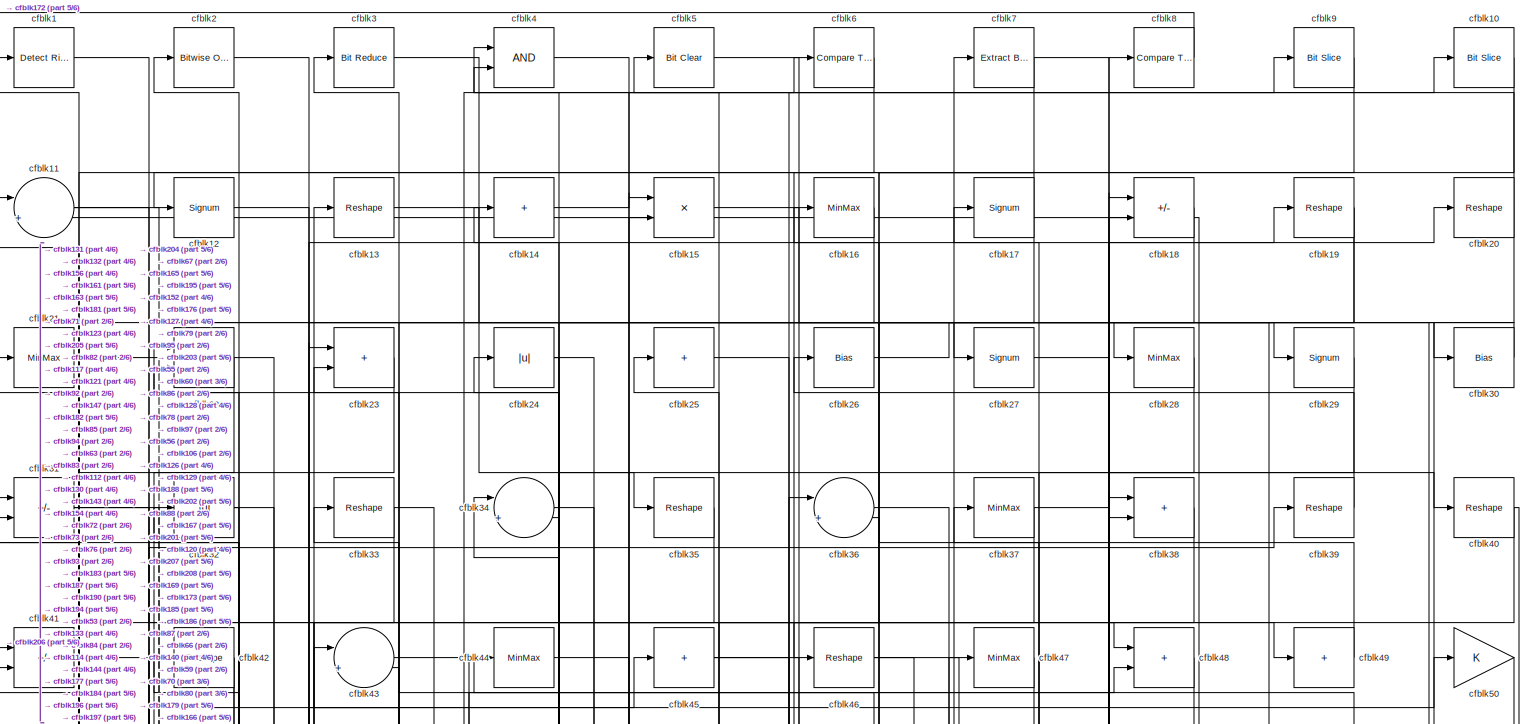
[diagram: root canvas - part 1/6, full width, top band]
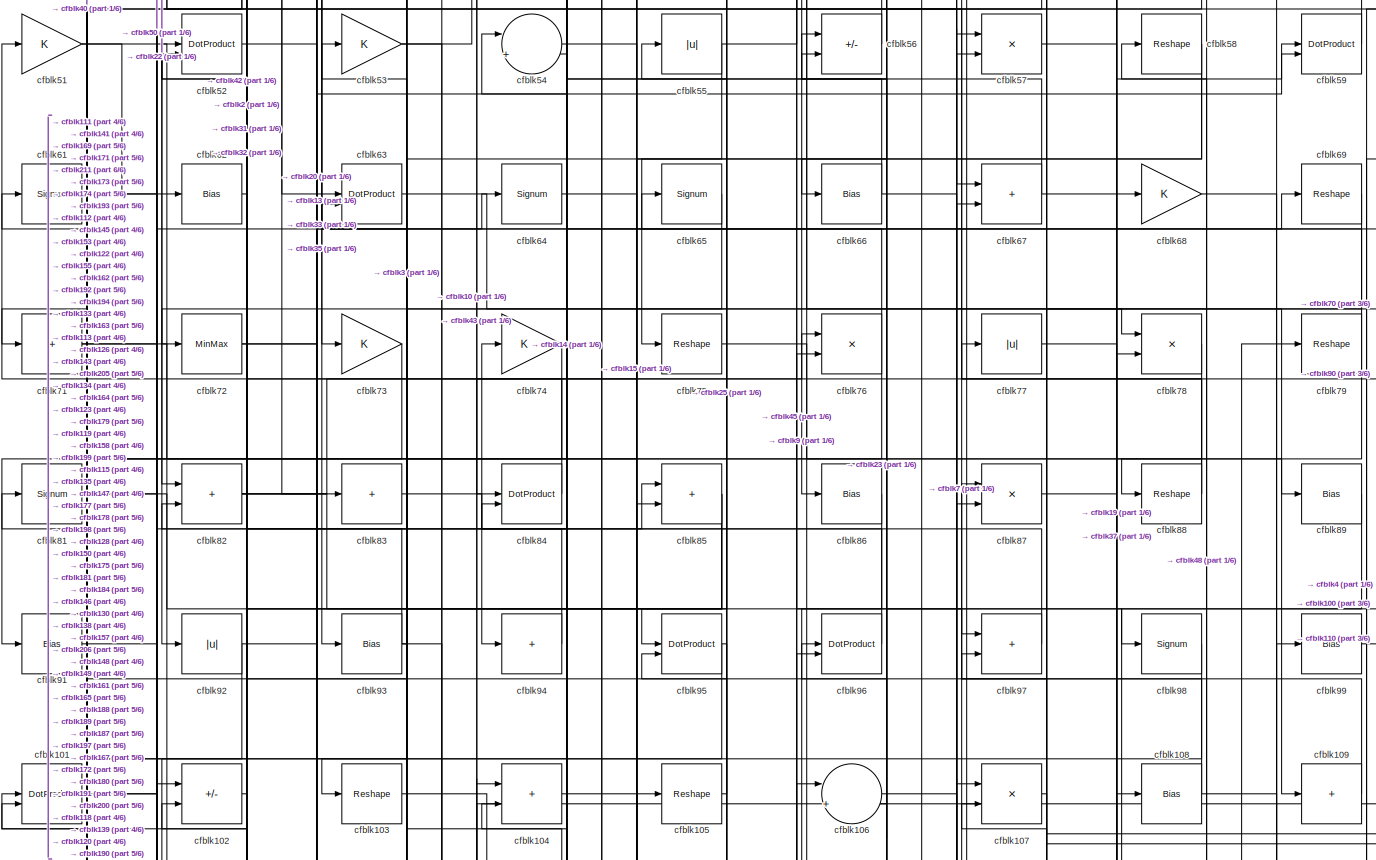
[diagram: root canvas - part 2/6, full width, middle band]
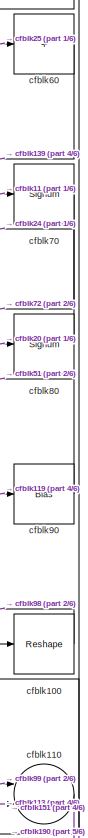
[diagram: root canvas - part 3/6, middle right region]
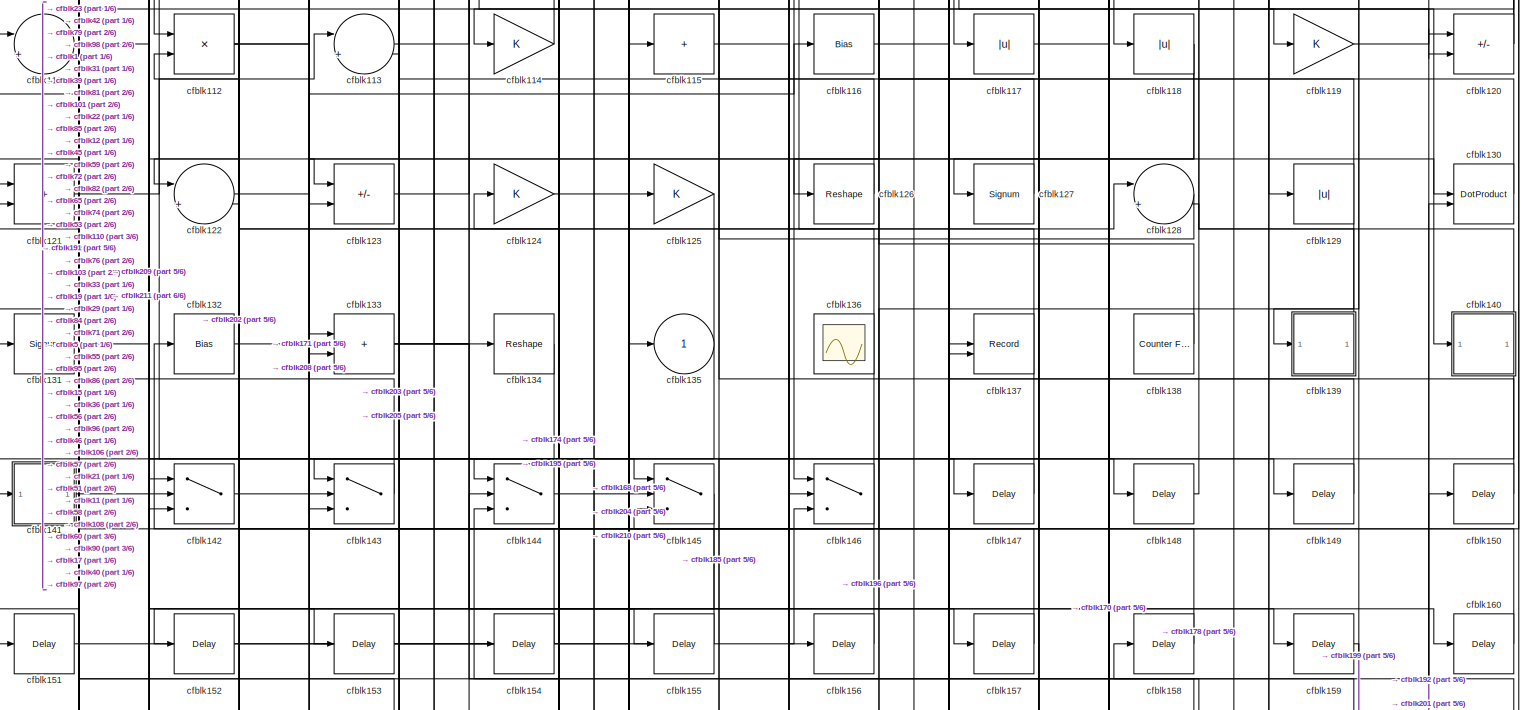
[diagram: root canvas - part 4/6, full width, middle band]
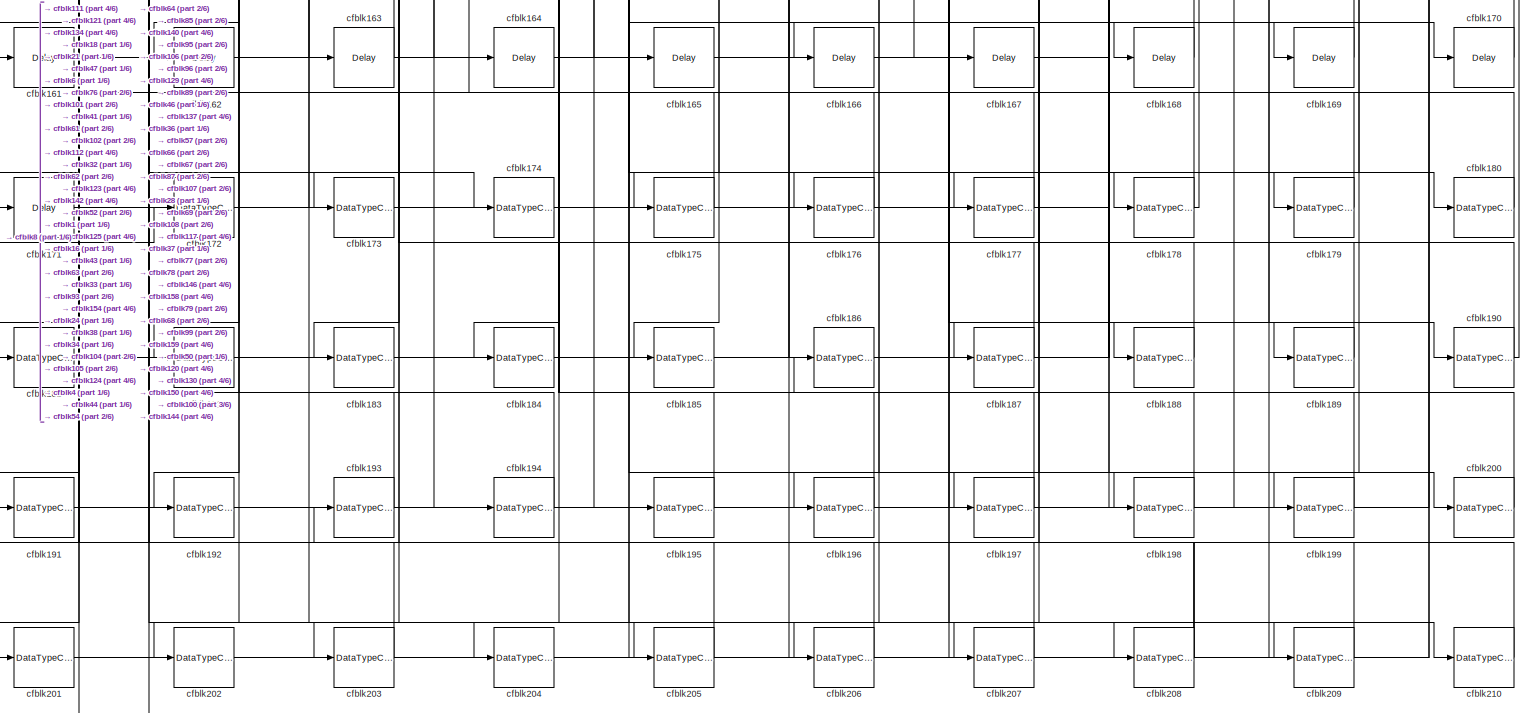
[diagram: root canvas - part 5/6, full width, bottom band]
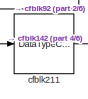
[diagram: root canvas - part 6/6, bottom left region]
MODEL slx_17cd2291e1c9
KIND model
CONFIG AbsTol = auto
CONFIG EnableMultiTasking = off
CONFIG FixedStep = auto
CONFIG MaxStep = auto
CONFIG MinStep = auto
CONFIG RelTol = 1e-3
CONFIG SampleTimeConstraint = Unconstrained
CONFIG SolverName = VariableStepAuto
CONFIG StartTime = 0.0
CONFIG StopTime = 10.0
BLOCK [Reference] cfblk1  REF=hdlsllib/Logic and Bit
Operations/Detect Rise
Nonnegative
  SourceBlock = hdlsllib/Logic and Bit\nOperations/Detect Rise\nNonnegative
  SourceType = Detect Rise Nonnegative
BLOCK [Reference] cfblk10  REF=hdlsllib/Logic and Bit
Operations/Bit Slice
  SourceBlock = hdlsllib/Logic and Bit\nOperations/Bit Slice
  SourceType = Bit Slice
BLOCK [Reshape] cfblk100
BLOCK [DotProduct] cfblk101
  OutDataTypeStr = Inherit: Inherit via internal rule
BLOCK [Sum] cfblk102
  IconShape = rectangular
  Inputs = +-
BLOCK [Reshape] cfblk103
BLOCK [Sum] cfblk104
  IconShape = rectangular
BLOCK [Reshape] cfblk105
BLOCK [Sum] cfblk106
  Inputs = |++
BLOCK [Product] cfblk107
  Inputs = */
  RndMeth = Zero
  SaturateOnIntegerOverflow = on
BLOCK [Bias] cfblk108
  Bias = 0.0
  SaturateOnIntegerOverflow = off
BLOCK [Sum] cfblk109
  IconShape = rectangular
  Inputs = +
BLOCK [Sum] cfblk11
  Inputs = |++
BLOCK [Sum] cfblk110
  Inputs = |++
BLOCK [Sum] cfblk111
  Inputs = |++
BLOCK [Product] cfblk112
  Inputs = */
  RndMeth = Zero
  SaturateOnIntegerOverflow = on
BLOCK [Sum] cfblk113
  Inputs = |++
BLOCK [Gain] cfblk114
BLOCK [Sum] cfblk115
  IconShape = rectangular
  Inputs = +
BLOCK [Bias] cfblk116
  Bias = 0.0
  SaturateOnIntegerOverflow = off
BLOCK [Abs] cfblk117
  SaturateOnIntegerOverflow = off
BLOCK [Abs] cfblk118
  SaturateOnIntegerOverflow = off
BLOCK [Gain] cfblk119
BLOCK [Signum] cfblk12
BLOCK [Sum] cfblk120
  IconShape = rectangular
  Inputs = +-
BLOCK [Sum] cfblk121
  IconShape = rectangular
BLOCK [Sum] cfblk122
  Inputs = |++
BLOCK [Sum] cfblk123
  IconShape = rectangular
  Inputs = +-
BLOCK [Gain] cfblk124
BLOCK [Gain] cfblk125
BLOCK [Reshape] cfblk126
BLOCK [Signum] cfblk127
BLOCK [Sum] cfblk128
  Inputs = |++
BLOCK [Abs] cfblk129
  SaturateOnIntegerOverflow = off
BLOCK [Reshape] cfblk13
BLOCK [DotProduct] cfblk130
  OutDataTypeStr = Inherit: Inherit via internal rule
BLOCK [Signum] cfblk131
BLOCK [Bias] cfblk132
  Bias = 0.0
  SaturateOnIntegerOverflow = off
BLOCK [Sum] cfblk133
  IconShape = rectangular
BLOCK [Reshape] cfblk134
BLOCK [Outport] cfblk135
  VectorParamsAs1DForOutWhenUnconnected = off
BLOCK [Scope] cfblk136
  Floating = on
  NumInputPorts = 1
  ScopeSpecificationString = Simulink.scopes.TimeScopeBlockCfg('CurrentConfiguration', extmgr.ConfigurationSet(extmgr.Configuration('Core','General UI',true,'FigureColor',[0.156862745098039 0.156862745098039 0.156862745098039]),extmgr.Configuration('Core','Source UI',true),extmgr.Configuration('Sources','WiredSimulink',true,'DataLoggingVariableName','ScopeData1','DataLoggingSaveFormat','StructureWithTime','DataLoggingLimitDat...<+2713ch>
BLOCK [Record] cfblk137
  CompatibilityTag = XY
  FileSettingsInternal = {"entries":[{"content":{"excelSettings":{"content":{},"type":"Streamout.ExcelSettings"}},"type":"Streamout.FileSettingStorage","uuid":""}],"packageUris":["http:\/\/schema.mathworks.com\/mf0\/streamout_blocks\/R2020a"],"version":"1.0"}
  Layout = [1 1]
  SignalsInternal = {"entries":[{"content":{"signals":[{"content":{"blockPath":[],"dimensions":[1],"domain":"","lineColor":"#a2142f","plots":[1],"port":1,"signalID":4553,"signalName":"XY Graph:1"},"type":"RecordBlkView.Signal","uuid":""},{"content":{"blockPath":[],"dimensions":[1],"domain":"","lineColor":"#139fff","plots":[1],"port":2,"signalID":4556,"signalName":"XY Graph:2"},"type":"RecordBlkView.Signal","uuid":""}...<+146ch>
  VisualizationBindings = {"xyplotplugin":{"info":[{"series":[{"bindingParametersList":[{"parameter":"X-Axis","signalID":4553,"signalName":"XY Graph:1"},{"parameter":"Y-Axis","signalID":4556,"signalName":"XY Graph:2"}],"seriesID":53753}],"subplotID":1}]}}
  st = -1
BLOCK [Reference] cfblk138  REF=hdlsllib/Sources/Counter
Free-Running
  SourceBlock = hdlsllib/Sources/Counter\nFree-Running
  SourceType = Counter Free-Running
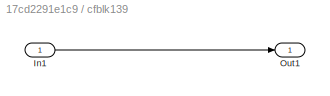
BLOCK [SubSystem] cfblk139
  LibrarySourceBlock = hdlsllib/Ports &\nSubsystems/Subsystem
BLOCK [Inport] cfblk139/In1
BLOCK [Outport] cfblk139/Out1
BLOCK [Sum] cfblk14
  IconShape = rectangular
  Inputs = +
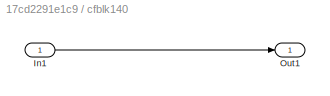
BLOCK [SubSystem] cfblk140
  LibrarySourceBlock = hdlsllib/Ports &\nSubsystems/Subsystem
BLOCK [Inport] cfblk140/In1
BLOCK [Outport] cfblk140/Out1
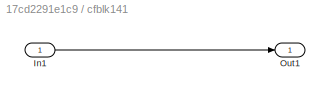
BLOCK [SubSystem] cfblk141
  LibrarySourceBlock = hdlsllib/Ports &\nSubsystems/Subsystem
BLOCK [Inport] cfblk141/In1
BLOCK [Outport] cfblk141/Out1
BLOCK [Switch] cfblk142
  InputSameDT = off
  SaturateOnIntegerOverflow = off
BLOCK [Switch] cfblk143
  InputSameDT = off
  SaturateOnIntegerOverflow = off
BLOCK [Switch] cfblk144
  InputSameDT = off
  SaturateOnIntegerOverflow = off
BLOCK [Switch] cfblk145
  InputSameDT = off
  SaturateOnIntegerOverflow = off
BLOCK [Switch] cfblk146
  InputSameDT = off
  SaturateOnIntegerOverflow = off
BLOCK [Delay] cfblk147
  InputPortMap = u0
  SampleTime = 1
BLOCK [Delay] cfblk148
  InputPortMap = u0
  SampleTime = 1
BLOCK [Delay] cfblk149
  InputPortMap = u0
  SampleTime = 1
BLOCK [Product] cfblk15
  Inputs = */
  RndMeth = Zero
  SaturateOnIntegerOverflow = on
BLOCK [Delay] cfblk150
  InputPortMap = u0
  SampleTime = 1
BLOCK [Delay] cfblk151
  InputPortMap = u0
  SampleTime = 1
BLOCK [Delay] cfblk152
  InputPortMap = u0
  SampleTime = 1
BLOCK [Delay] cfblk153
  InputPortMap = u0
  SampleTime = 1
BLOCK [Delay] cfblk154
  InputPortMap = u0
  SampleTime = 1
BLOCK [Delay] cfblk155
  InputPortMap = u0
  SampleTime = 1
BLOCK [Delay] cfblk156
  InputPortMap = u0
  SampleTime = 1
BLOCK [Delay] cfblk157
  InputPortMap = u0
  SampleTime = 1
BLOCK [Delay] cfblk158
  InputPortMap = u0
  SampleTime = 1
BLOCK [Delay] cfblk159
  InputPortMap = u0
  SampleTime = 1
BLOCK [MinMax] cfblk16
BLOCK [Delay] cfblk160
  InputPortMap = u0
  SampleTime = 1
BLOCK [Delay] cfblk161
  InputPortMap = u0
  SampleTime = 1
BLOCK [Delay] cfblk162
  InputPortMap = u0
  SampleTime = 1
BLOCK [Delay] cfblk163
  InputPortMap = u0
  SampleTime = 1
BLOCK [Delay] cfblk164
  InputPortMap = u0
  SampleTime = 1
BLOCK [Delay] cfblk165
  InputPortMap = u0
  SampleTime = 1
BLOCK [Delay] cfblk166
  InputPortMap = u0
  SampleTime = 1
BLOCK [Delay] cfblk167
  InputPortMap = u0
  SampleTime = 1
BLOCK [Delay] cfblk168
  InputPortMap = u0
  SampleTime = 1
BLOCK [Delay] cfblk169
  InputPortMap = u0
  SampleTime = 1
BLOCK [Signum] cfblk17
BLOCK [Delay] cfblk170
  InputPortMap = u0
  SampleTime = 1
BLOCK [Delay] cfblk171
  InputPortMap = u0
  SampleTime = 1
BLOCK [DataTypeConversion] cfblk172
  OutDataTypeStr = uint8
  RndMeth = Floor
  SaturateOnIntegerOverflow = off
BLOCK [DataTypeConversion] cfblk173
  OutDataTypeStr = uint8
  RndMeth = Floor
  SaturateOnIntegerOverflow = off
BLOCK [DataTypeConversion] cfblk174
  RndMeth = Floor
  SaturateOnIntegerOverflow = off
BLOCK [DataTypeConversion] cfblk175
  OutDataTypeStr = uint8
  RndMeth = Floor
  SaturateOnIntegerOverflow = off
BLOCK [DataTypeConversion] cfblk176
  OutDataTypeStr = uint8
  RndMeth = Floor
  SaturateOnIntegerOverflow = off
BLOCK [DataTypeConversion] cfblk177
  OutDataTypeStr = uint8
  RndMeth = Floor
  SaturateOnIntegerOverflow = off
BLOCK [DataTypeConversion] cfblk178
  RndMeth = Floor
  SaturateOnIntegerOverflow = off
BLOCK [DataTypeConversion] cfblk179
  OutDataTypeStr = uint8
  RndMeth = Floor
  SaturateOnIntegerOverflow = off
BLOCK [Sum] cfblk18
  IconShape = rectangular
  Inputs = +-
BLOCK [DataTypeConversion] cfblk180
  OutDataTypeStr = uint8
  RndMeth = Floor
  SaturateOnIntegerOverflow = off
BLOCK [DataTypeConversion] cfblk181
  RndMeth = Floor
  SaturateOnIntegerOverflow = off
BLOCK [DataTypeConversion] cfblk182
  OutDataTypeStr = uint8
  RndMeth = Floor
  SaturateOnIntegerOverflow = off
BLOCK [DataTypeConversion] cfblk183
  OutDataTypeStr = uint8
  RndMeth = Floor
  SaturateOnIntegerOverflow = off
BLOCK [DataTypeConversion] cfblk184
  OutDataTypeStr = uint8
  RndMeth = Floor
  SaturateOnIntegerOverflow = off
BLOCK [DataTypeConversion] cfblk185
  OutDataTypeStr = uint8
  RndMeth = Floor
  SaturateOnIntegerOverflow = off
BLOCK [DataTypeConversion] cfblk186
  OutDataTypeStr = uint8
  RndMeth = Floor
  SaturateOnIntegerOverflow = off
BLOCK [DataTypeConversion] cfblk187
  OutDataTypeStr = uint8
  RndMeth = Floor
  SaturateOnIntegerOverflow = off
BLOCK [DataTypeConversion] cfblk188
  OutDataTypeStr = uint8
  RndMeth = Floor
  SaturateOnIntegerOverflow = off
BLOCK [DataTypeConversion] cfblk189
  OutDataTypeStr = uint8
  RndMeth = Floor
  SaturateOnIntegerOverflow = off
BLOCK [Reshape] cfblk19
BLOCK [DataTypeConversion] cfblk190
  RndMeth = Floor
  SaturateOnIntegerOverflow = off
BLOCK [DataTypeConversion] cfblk191
  OutDataTypeStr = uint8
  RndMeth = Floor
  SaturateOnIntegerOverflow = off
BLOCK [DataTypeConversion] cfblk192
  OutDataTypeStr = uint8
  RndMeth = Floor
  SaturateOnIntegerOverflow = off
BLOCK [DataTypeConversion] cfblk193
  OutDataTypeStr = uint8
  RndMeth = Floor
  SaturateOnIntegerOverflow = off
BLOCK [DataTypeConversion] cfblk194
  OutDataTypeStr = uint8
  RndMeth = Floor
  SaturateOnIntegerOverflow = off
BLOCK [DataTypeConversion] cfblk195
  RndMeth = Floor
  SaturateOnIntegerOverflow = off
BLOCK [DataTypeConversion] cfblk196
  OutDataTypeStr = uint8
  RndMeth = Floor
  SaturateOnIntegerOverflow = off
BLOCK [DataTypeConversion] cfblk197
  OutDataTypeStr = uint8
  RndMeth = Floor
  SaturateOnIntegerOverflow = off
BLOCK [DataTypeConversion] cfblk198
  RndMeth = Floor
  SaturateOnIntegerOverflow = off
BLOCK [DataTypeConversion] cfblk199
  OutDataTypeStr = uint8
  RndMeth = Floor
  SaturateOnIntegerOverflow = off
BLOCK [Reference] cfblk2  REF=simulink/Logic and Bit
Operations/Bitwise
Operator
  LibrarySourceBlock = hdlsllib/Logic and Bit\nOperations/Bitwise\nOperator
  SourceBlock = simulink/Logic and Bit\nOperations/Bitwise\nOperator
  SourceType = Bitwise Operator
BLOCK [Reshape] cfblk20
BLOCK [DataTypeConversion] cfblk200
  OutDataTypeStr = uint8
  RndMeth = Floor
  SaturateOnIntegerOverflow = off
BLOCK [DataTypeConversion] cfblk201
  OutDataTypeStr = uint8
  RndMeth = Floor
  SaturateOnIntegerOverflow = off
BLOCK [DataTypeConversion] cfblk202
  OutDataTypeStr = uint8
  RndMeth = Floor
  SaturateOnIntegerOverflow = off
BLOCK [DataTypeConversion] cfblk203
  RndMeth = Floor
  SaturateOnIntegerOverflow = off
BLOCK [DataTypeConversion] cfblk204
  OutDataTypeStr = uint8
  RndMeth = Floor
  SaturateOnIntegerOverflow = off
BLOCK [DataTypeConversion] cfblk205
  RndMeth = Floor
  SaturateOnIntegerOverflow = off
BLOCK [DataTypeConversion] cfblk206
  OutDataTypeStr = uint8
  RndMeth = Floor
  SaturateOnIntegerOverflow = off
BLOCK [DataTypeConversion] cfblk207
  OutDataTypeStr = uint8
  RndMeth = Floor
  SaturateOnIntegerOverflow = off
BLOCK [DataTypeConversion] cfblk208
  RndMeth = Floor
  SaturateOnIntegerOverflow = off
BLOCK [DataTypeConversion] cfblk209
  OutDataTypeStr = uint8
  RndMeth = Floor
  SaturateOnIntegerOverflow = off
BLOCK [MinMax] cfblk21
BLOCK [DataTypeConversion] cfblk210
  OutDataTypeStr = uint8
  RndMeth = Floor
  SaturateOnIntegerOverflow = off
BLOCK [DataTypeConversion] cfblk211
  OutDataTypeStr = uint8
  RndMeth = Floor
  SaturateOnIntegerOverflow = off
BLOCK [Sum] cfblk22
  IconShape = rectangular
BLOCK [Sum] cfblk23
  IconShape = rectangular
BLOCK [Abs] cfblk24
  SaturateOnIntegerOverflow = off
BLOCK [Sum] cfblk25
  IconShape = rectangular
  Inputs = +
BLOCK [Bias] cfblk26
  Bias = 0.0
  SaturateOnIntegerOverflow = off
BLOCK [Signum] cfblk27
BLOCK [MinMax] cfblk28
BLOCK [Signum] cfblk29
BLOCK [Reference] cfblk3  REF=hdlsllib/Logic and Bit
Operations/Bit Reduce
  SourceBlock = hdlsllib/Logic and Bit\nOperations/Bit Reduce
  SourceType = Bit Reduce
BLOCK [Bias] cfblk30
  Bias = 0.0
  SaturateOnIntegerOverflow = off
BLOCK [Sum] cfblk31
  IconShape = rectangular
  Inputs = +-
BLOCK [Abs] cfblk32
  SaturateOnIntegerOverflow = off
BLOCK [Reshape] cfblk33
BLOCK [Sum] cfblk34
  Inputs = |++
BLOCK [Reshape] cfblk35
BLOCK [Sum] cfblk36
  Inputs = |++
BLOCK [MinMax] cfblk37
BLOCK [Sum] cfblk38
  IconShape = rectangular
BLOCK [Reshape] cfblk39
BLOCK [Logic] cfblk4
  AllPortsSameDT = off
  OutDataTypeStr = boolean
BLOCK [Reshape] cfblk40
BLOCK [Sum] cfblk41
  IconShape = rectangular
  Inputs = +-
BLOCK [Reshape] cfblk42
BLOCK [Sum] cfblk43
  Inputs = |++
BLOCK [MinMax] cfblk44
BLOCK [Sum] cfblk45
  IconShape = rectangular
  Inputs = +
BLOCK [Reshape] cfblk46
BLOCK [MinMax] cfblk47
BLOCK [Sum] cfblk48
  IconShape = rectangular
BLOCK [Sum] cfblk49
  IconShape = rectangular
  Inputs = +
BLOCK [Reference] cfblk5  REF=simulink/Logic and Bit
Operations/Bit Clear
  LibrarySourceBlock = hdlsllib/Logic and Bit\nOperations/Bit Clear
  SourceBlock = simulink/Logic and Bit\nOperations/Bit Clear
  SourceType = Bit Clear
BLOCK [Gain] cfblk50
BLOCK [Gain] cfblk51
BLOCK [DotProduct] cfblk52
  OutDataTypeStr = Inherit: Inherit via internal rule
BLOCK [Gain] cfblk53
BLOCK [Sum] cfblk54
  Inputs = |++
BLOCK [Abs] cfblk55
  SaturateOnIntegerOverflow = off
BLOCK [Sum] cfblk56
  IconShape = rectangular
  Inputs = +-
BLOCK [Product] cfblk57
  Inputs = */
  RndMeth = Zero
  SaturateOnIntegerOverflow = on
BLOCK [Reshape] cfblk58
BLOCK [DotProduct] cfblk59
  OutDataTypeStr = Inherit: Inherit via internal rule
BLOCK [Reference] cfblk6  REF=hdlsllib/Logic and Bit
Operations/Compare
To Zero
  SourceBlock = hdlsllib/Logic and Bit\nOperations/Compare\nTo Zero
  SourceType = Compare To Zero
BLOCK [Sum] cfblk60
  IconShape = rectangular
  Inputs = +
BLOCK [Signum] cfblk61
BLOCK [Bias] cfblk62
  Bias = 0.0
  SaturateOnIntegerOverflow = off
BLOCK [DotProduct] cfblk63
  OutDataTypeStr = Inherit: Inherit via internal rule
BLOCK [Signum] cfblk64
BLOCK [Signum] cfblk65
BLOCK [Bias] cfblk66
  Bias = 0.0
  SaturateOnIntegerOverflow = off
BLOCK [Sum] cfblk67
  IconShape = rectangular
BLOCK [Gain] cfblk68
BLOCK [Reshape] cfblk69
BLOCK [Reference] cfblk7  REF=simulink/Logic and Bit
Operations/Extract Bits
  LibrarySourceBlock = hdlsllib/Logic and Bit\nOperations/Extract Bits
  SourceBlock = simulink/Logic and Bit\nOperations/Extract Bits
  SourceType = Extract Bits
BLOCK [Signum] cfblk70
BLOCK [Sum] cfblk71
  IconShape = rectangular
  Inputs = +
BLOCK [MinMax] cfblk72
BLOCK [Gain] cfblk73
BLOCK [Gain] cfblk74
BLOCK [Reshape] cfblk75
BLOCK [Product] cfblk76
  Inputs = */
  RndMeth = Zero
  SaturateOnIntegerOverflow = on
BLOCK [Abs] cfblk77
  SaturateOnIntegerOverflow = off
BLOCK [Product] cfblk78
  Inputs = */
  RndMeth = Zero
  SaturateOnIntegerOverflow = on
BLOCK [Reshape] cfblk79
BLOCK [Reference] cfblk8  REF=hdlsllib/Logic and Bit
Operations/Compare
To Zero
  SourceBlock = hdlsllib/Logic and Bit\nOperations/Compare\nTo Zero
  SourceType = Compare To Zero
BLOCK [Signum] cfblk80
BLOCK [Signum] cfblk81
BLOCK [Sum] cfblk82
  IconShape = rectangular
BLOCK [Sum] cfblk83
  IconShape = rectangular
  Inputs = +
BLOCK [DotProduct] cfblk84
  OutDataTypeStr = Inherit: Inherit via internal rule
BLOCK [Sum] cfblk85
  IconShape = rectangular
BLOCK [Bias] cfblk86
  Bias = 0.0
  SaturateOnIntegerOverflow = off
BLOCK [Product] cfblk87
  Inputs = */
  RndMeth = Zero
  SaturateOnIntegerOverflow = on
BLOCK [Reshape] cfblk88
BLOCK [Bias] cfblk89
  Bias = 0.0
  SaturateOnIntegerOverflow = off
BLOCK [Reference] cfblk9  REF=hdlsllib/Logic and Bit
Operations/Bit Slice
  SourceBlock = hdlsllib/Logic and Bit\nOperations/Bit Slice
  SourceType = Bit Slice
BLOCK [Bias] cfblk90
  Bias = 0.0
  SaturateOnIntegerOverflow = off
BLOCK [Bias] cfblk91
  Bias = 0.0
  SaturateOnIntegerOverflow = off
BLOCK [Abs] cfblk92
  SaturateOnIntegerOverflow = off
BLOCK [Bias] cfblk93
  Bias = 0.0
  SaturateOnIntegerOverflow = off
BLOCK [Sum] cfblk94
  IconShape = rectangular
  Inputs = +
BLOCK [DotProduct] cfblk95
  OutDataTypeStr = Inherit: Inherit via internal rule
BLOCK [DotProduct] cfblk96
  OutDataTypeStr = Inherit: Inherit via internal rule
BLOCK [Sum] cfblk97
  IconShape = rectangular
BLOCK [Signum] cfblk98
BLOCK [Bias] cfblk99
  Bias = 0.0
  SaturateOnIntegerOverflow = off
LINE cfblk100:1 -> cfblk98:1
NET cfblk101:1 -> cfblk173:1, cfblk64:1
LINE cfblk102:1 -> cfblk192:1
LINE cfblk103:1 -> cfblk119:1
LINE cfblk104:1 -> cfblk178:1
LINE cfblk105:1 -> cfblk65:1
LINE cfblk106:1 -> cfblk148:1
LINE cfblk107:1 -> cfblk187:1
NET cfblk108:1 -> cfblk120:2, cfblk87:1
LINE cfblk109:1 -> cfblk81:1
LINE cfblk10:1 -> cfblk106:2
LINE cfblk110:1 -> cfblk151:1
LINE cfblk111:1 -> cfblk157:1
NET cfblk112:1 -> cfblk202:1, cfblk45:1, cfblk59:2
LINE cfblk113:1 -> cfblk110:2
LINE cfblk114:1 -> cfblk33:1
LINE cfblk115:1 -> cfblk156:1
LINE cfblk116:1 -> cfblk137:1
LINE cfblk117:1 -> cfblk170:1
NET cfblk118:1 -> cfblk127:1, cfblk133:2
LINE cfblk119:1 -> cfblk90:1
NET cfblk11:1 -> cfblk48:1, cfblk70:1
NET cfblk120:1 -> cfblk17:1, cfblk97:2
LINE cfblk121:1 -> cfblk113:1
LINE cfblk122:1 -> cfblk116:1
LINE cfblk123:1 -> cfblk76:1
LINE cfblk124:1 -> cfblk168:1
LINE cfblk125:1 -> cfblk203:1
LINE cfblk126:1 -> cfblk53:1
LINE cfblk127:1 -> cfblk5:1
LINE cfblk128:1 -> cfblk55:1
NET cfblk129:1 -> cfblk196:1, cfblk36:2
LINE cfblk12:1 -> cfblk130:1
LINE cfblk130:1 -> cfblk56:1
LINE cfblk131:1 -> cfblk39:1
LINE cfblk132:1 -> cfblk155:1
NET cfblk133:1 -> cfblk159:1, cfblk160:1, cfblk48:2
LINE cfblk134:1 -> cfblk191:1
LINE cfblk138:1 -> cfblk96:1
LINE cfblk139/In1:1 -> cfblk139/Out1:1
LINE cfblk139:1 -> cfblk58:1
LINE cfblk13:1 -> cfblk35:1
LINE cfblk140/In1:1 -> cfblk140/Out1:1
NET cfblk140:1 -> cfblk11:2, cfblk185:1
LINE cfblk141/In1:1 -> cfblk141/Out1:1
LINE cfblk141:1 -> cfblk149:1
LINE cfblk142:1 -> cfblk208:1
LINE cfblk143:1 -> cfblk11:1
LINE cfblk144:1 -> cfblk210:1
LINE cfblk145:1 -> cfblk152:1
NET cfblk146:1 -> cfblk101:1, cfblk145:3
LINE cfblk147:1 -> cfblk22:2
LINE cfblk148:1 -> cfblk128:2
LINE cfblk149:1 -> cfblk57:1
LINE cfblk14:1 -> cfblk6:1
LINE cfblk150:1 -> cfblk95:2
LINE cfblk151:1 -> cfblk144:3
LINE cfblk152:1 -> cfblk15:1
LINE cfblk153:1 -> cfblk146:3
LINE cfblk154:1 -> cfblk23:1
LINE cfblk155:1 -> cfblk82:2
LINE cfblk156:1 -> cfblk31:2
LINE cfblk157:1 -> cfblk56:2
LINE cfblk158:1 -> cfblk84:2
LINE cfblk159:1 -> cfblk199:1
LINE cfblk15:1 -> cfblk128:1
LINE cfblk160:1 -> cfblk112:2
LINE cfblk161:1 -> cfblk67:2
LINE cfblk162:1 -> cfblk85:2
LINE cfblk163:1 -> cfblk1:1
LINE cfblk164:1 -> cfblk76:2
LINE cfblk165:1 -> cfblk87:2
LINE cfblk166:1 -> cfblk209:1
LINE cfblk167:1 -> cfblk78:2
LINE cfblk168:1 -> cfblk146:2
LINE cfblk169:1 -> cfblk101:2
LINE cfblk16:1 -> cfblk183:1
LINE cfblk170:1 -> cfblk144:2
LINE cfblk171:1 -> cfblk123:2
LINE cfblk172:1 -> cfblk108:1
LINE cfblk173:1 -> cfblk8:1
NET cfblk174:1 -> cfblk105:1, cfblk124:1
LINE cfblk175:1 -> cfblk61:1
LINE cfblk176:1 -> cfblk32:1
LINE cfblk177:1 -> cfblk44:1
NET cfblk178:1 -> cfblk111:1, cfblk158:1
LINE cfblk179:1 -> cfblk104:1
NET cfblk17:1 -> cfblk126:1, cfblk12:1
LINE cfblk180:1 -> cfblk104:2
NET cfblk181:1 -> cfblk57:2, cfblk96:2
LINE cfblk182:1 -> cfblk18:1
LINE cfblk183:1 -> cfblk18:2
LINE cfblk184:1 -> cfblk106:1
LINE cfblk185:1 -> cfblk38:1
LINE cfblk186:1 -> cfblk38:2
LINE cfblk187:1 -> cfblk43:1
LINE cfblk188:1 -> cfblk107:1
LINE cfblk189:1 -> cfblk107:2
LINE cfblk18:1 -> cfblk181:1
NET cfblk190:1 -> cfblk100:1, cfblk43:2
LINE cfblk191:1 -> cfblk68:1
LINE cfblk192:1 -> cfblk130:2
LINE cfblk193:1 -> cfblk102:1
LINE cfblk194:1 -> cfblk102:2
NET cfblk195:1 -> cfblk137:2, cfblk154:1
LINE cfblk196:1 -> cfblk34:1
LINE cfblk197:1 -> cfblk34:2
NET cfblk198:1 -> cfblk186:1, cfblk79:1
LINE cfblk199:1 -> cfblk54:1
NET cfblk19:1 -> cfblk143:2, cfblk144:1
LINE cfblk1:1 -> cfblk123:1
LINE cfblk200:1 -> cfblk54:2
LINE cfblk201:1 -> cfblk120:1
LINE cfblk202:1 -> cfblk47:1
NET cfblk203:1 -> cfblk193:1, cfblk36:1
LINE cfblk204:1 -> cfblk125:1
NET cfblk205:1 -> cfblk150:1, cfblk63:2, cfblk99:1
LINE cfblk206:1 -> cfblk41:1
LINE cfblk207:1 -> cfblk41:2
NET cfblk208:1 -> cfblk121:2, cfblk21:1, cfblk37:1
LINE cfblk209:1 -> cfblk142:1
NET cfblk20:1 -> cfblk4:2, cfblk80:1
LINE cfblk210:1 -> cfblk142:2
LINE cfblk211:1 -> cfblk142:3
LINE cfblk21:1 -> cfblk117:1
NET cfblk22:1 -> cfblk82:1, cfblk83:1
LINE cfblk23:1 -> cfblk131:1
NET cfblk24:1 -> cfblk165:1, cfblk204:1
LINE cfblk25:1 -> cfblk60:1
LINE cfblk26:1 -> cfblk29:1
LINE cfblk27:1 -> cfblk40:1
LINE cfblk28:1 -> cfblk207:1
LINE cfblk29:1 -> cfblk114:1
LINE cfblk2:1 -> cfblk27:1
LINE cfblk30:1 -> cfblk28:1
NET cfblk31:1 -> cfblk143:3, cfblk67:1
NET cfblk32:1 -> cfblk182:1, cfblk63:1
NET cfblk33:1 -> cfblk194:1, cfblk93:1
LINE cfblk34:1 -> cfblk195:1
LINE cfblk35:1 -> cfblk73:1
LINE cfblk36:1 -> cfblk188:1
NET cfblk37:1 -> cfblk169:1, cfblk95:1
LINE cfblk38:1 -> cfblk184:1
LINE cfblk39:1 -> cfblk16:1
LINE cfblk3:1 -> cfblk30:1
NET cfblk40:1 -> cfblk132:1, cfblk71:1
LINE cfblk41:1 -> cfblk205:1
NET cfblk42:1 -> cfblk121:1, cfblk92:1
LINE cfblk43:1 -> cfblk84:1
LINE cfblk44:1 -> cfblk176:1
NET cfblk45:1 -> cfblk78:1, cfblk97:1
NET cfblk46:1 -> cfblk140:1, cfblk167:1
LINE cfblk47:1 -> cfblk201:1
LINE cfblk48:1 -> cfblk66:1
LINE cfblk49:1 -> cfblk26:1
LINE cfblk4:1 -> cfblk166:1
LINE cfblk50:1 -> cfblk179:1
NET cfblk51:1 -> cfblk118:1, cfblk62:1
LINE cfblk52:1 -> cfblk163:1
NET cfblk53:1 -> cfblk10:1, cfblk134:1
LINE cfblk54:1 -> cfblk198:1
NET cfblk55:1 -> cfblk145:2, cfblk9:1
LINE cfblk56:1 -> cfblk23:2
LINE cfblk57:1 -> cfblk200:1
NET cfblk58:1 -> cfblk103:1, cfblk75:1
LINE cfblk59:1 -> cfblk4:1
LINE cfblk5:1 -> cfblk129:1
LINE cfblk60:1 -> cfblk139:1
LINE cfblk61:1 -> cfblk174:1
LINE cfblk62:1 -> cfblk162:1
LINE cfblk63:1 -> cfblk109:1
LINE cfblk64:1 -> cfblk177:1
LINE cfblk65:1 -> cfblk143:1
NET cfblk66:1 -> cfblk14:1, cfblk189:1
NET cfblk67:1 -> cfblk22:1, cfblk59:1
LINE cfblk68:1 -> cfblk190:1
LINE cfblk69:1 -> cfblk197:1
LINE cfblk6:1 -> cfblk161:1
LINE cfblk70:1 -> cfblk72:1
NET cfblk71:1 -> cfblk115:1, cfblk50:1
NET cfblk72:1 -> cfblk133:1, cfblk20:1
LINE cfblk73:1 -> cfblk91:1
LINE cfblk74:1 -> cfblk113:2
LINE cfblk75:1 -> cfblk89:1
NET cfblk76:1 -> cfblk13:1, cfblk171:1
LINE cfblk77:1 -> cfblk180:1
LINE cfblk78:1 -> cfblk88:1
NET cfblk79:1 -> cfblk141:1, cfblk25:1
NET cfblk7:1 -> cfblk46:1, cfblk49:1
LINE cfblk80:1 -> cfblk24:1
NET cfblk81:1 -> cfblk145:1, cfblk153:1
NET cfblk82:1 -> cfblk135:1, cfblk147:1, cfblk15:2
LINE cfblk83:1 -> cfblk94:1
LINE cfblk84:1 -> cfblk2:1
NET cfblk85:1 -> cfblk122:1, cfblk122:2, cfblk31:1
LINE cfblk86:1 -> cfblk146:1
LINE cfblk87:1 -> cfblk19:1
NET cfblk88:1 -> cfblk77:1, cfblk7:1
LINE cfblk89:1 -> cfblk206:1
LINE cfblk8:1 -> cfblk172:1
LINE cfblk90:1 -> cfblk51:1
LINE cfblk91:1 -> cfblk85:1
NET cfblk92:1 -> cfblk211:1, cfblk69:1
NET cfblk93:1 -> cfblk164:1, cfblk3:1, cfblk52:2
LINE cfblk94:1 -> cfblk42:1
NET cfblk95:1 -> cfblk112:1, cfblk175:1
LINE cfblk96:1 -> cfblk74:1
LINE cfblk97:1 -> cfblk52:1
LINE cfblk98:1 -> cfblk111:2
LINE cfblk99:1 -> cfblk110:1
LINE cfblk9:1 -> cfblk86:1
note: NET lines group one-source signal fan-out (src -> all destinations, sorted); 1:1 wires keep LINE
